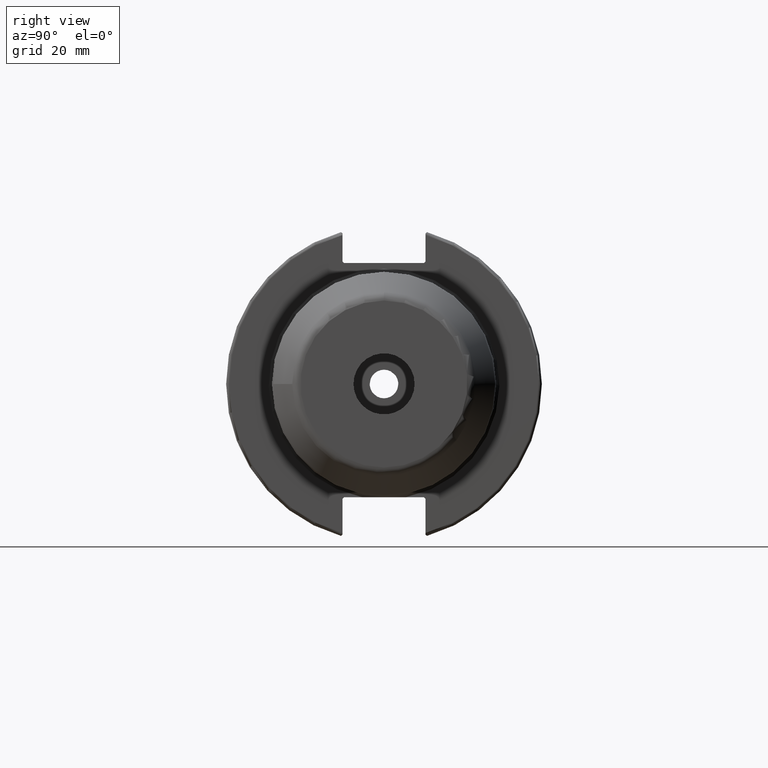
[diagram: clean part render]
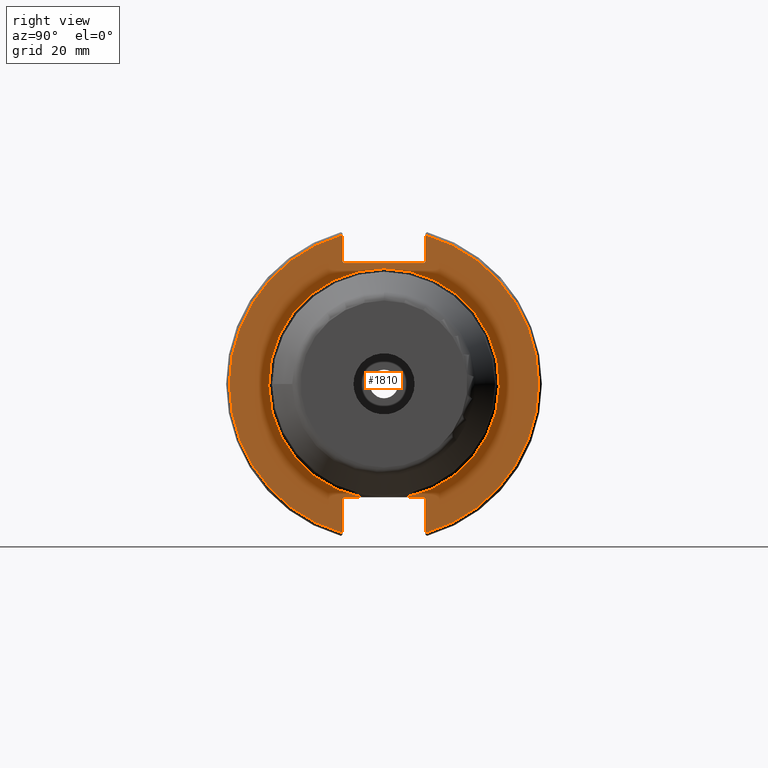
[diagram: same view with one face highlighted and labeled with its STEP entity id]
A machine part, right view. The second image highlights one B-rep face of the part: STEP entity #1810.
In plain terms, the highlighted planar face has unit normal (1, 0, 0).
Its self-contained STEP definition (entity closure, byte-faithful):
#47=PLANE('',#2032);
#224=FACE_OUTER_BOUND('',#342,.T.);
#342=EDGE_LOOP('',(#1504,#1505,#1506,#1507,#1508,#1509,#1510,#1511,#1512,
#1513,#1514,#1515,#1516,#1517));
#442=LINE('',#3430,#543);
#445=LINE('',#3445,#546);
#446=LINE('',#3446,#547);
#447=LINE('',#3448,#548);
#448=LINE('',#3450,#549);
#449=LINE('',#3452,#550);
#450=LINE('',#3454,#551);
#451=LINE('',#3456,#552);
#452=LINE('',#3460,#553);
#453=LINE('',#3462,#554);
#454=LINE('',#3463,#555);
#543=VECTOR('',#2469,10.);
#546=VECTOR('',#2474,10.);
#547=VECTOR('',#2475,10.);
#548=VECTOR('',#2476,10.);
#549=VECTOR('',#2477,10.);
#550=VECTOR('',#2478,10.);
#551=VECTOR('',#2479,10.);
#552=VECTOR('',#2480,10.);
#553=VECTOR('',#2483,10.);
#554=VECTOR('',#2484,10.);
#555=VECTOR('',#2485,10.);
#644=CIRCLE('',#1954,35.95);
#681=CIRCLE('',#2028,48.2125);
#683=CIRCLE('',#2033,48.2125);
#757=VERTEX_POINT('',#2901);
#758=VERTEX_POINT('',#2908);
#839=VERTEX_POINT('',#3385);
#840=VERTEX_POINT('',#3392);
#846=VERTEX_POINT('',#3429);
#848=VERTEX_POINT('',#3444);
#849=VERTEX_POINT('',#3447);
#850=VERTEX_POINT('',#3449);
#851=VERTEX_POINT('',#3451);
#852=VERTEX_POINT('',#3453);
#853=VERTEX_POINT('',#3455);
#854=VERTEX_POINT('',#3457);
#855=VERTEX_POINT('',#3459);
#856=VERTEX_POINT('',#3461);
#965=EDGE_CURVE('',#757,#758,#644,.T.);
#1072=EDGE_CURVE('',#839,#840,#681,.T.);
#1080=EDGE_CURVE('',#846,#840,#442,.T.);
#1085=EDGE_CURVE('',#757,#848,#445,.T.);
#1086=EDGE_CURVE('',#846,#848,#446,.T.);
#1087=EDGE_CURVE('',#839,#849,#447,.T.);
#1088=EDGE_CURVE('',#850,#849,#448,.T.);
#1089=EDGE_CURVE('',#850,#851,#449,.T.);
#1090=EDGE_CURVE('',#852,#851,#450,.T.);
#1091=EDGE_CURVE('',#852,#853,#451,.T.);
#1092=EDGE_CURVE('',#854,#853,#683,.T.);
#1093=EDGE_CURVE('',#854,#855,#452,.T.);
#1094=EDGE_CURVE('',#856,#855,#453,.T.);
#1095=EDGE_CURVE('',#856,#758,#454,.T.);
#1504=ORIENTED_EDGE('',*,*,#965,.F.);
#1505=ORIENTED_EDGE('',*,*,#1085,.T.);
#1506=ORIENTED_EDGE('',*,*,#1086,.F.);
#1507=ORIENTED_EDGE('',*,*,#1080,.T.);
#1508=ORIENTED_EDGE('',*,*,#1072,.F.);
#1509=ORIENTED_EDGE('',*,*,#1087,.T.);
#1510=ORIENTED_EDGE('',*,*,#1088,.F.);
#1511=ORIENTED_EDGE('',*,*,#1089,.T.);
#1512=ORIENTED_EDGE('',*,*,#1090,.F.);
#1513=ORIENTED_EDGE('',*,*,#1091,.T.);
#1514=ORIENTED_EDGE('',*,*,#1092,.F.);
#1515=ORIENTED_EDGE('',*,*,#1093,.T.);
#1516=ORIENTED_EDGE('',*,*,#1094,.F.);
#1517=ORIENTED_EDGE('',*,*,#1095,.T.);
#1810=ADVANCED_FACE('',(#224),#47,.T.);
#1954=AXIS2_PLACEMENT_3D('',#2909,#2269,#2270);
#2028=AXIS2_PLACEMENT_3D('',#3393,#2459,#2460);
#2032=AXIS2_PLACEMENT_3D('',#3443,#2472,#2473);
#2033=AXIS2_PLACEMENT_3D('',#3458,#2481,#2482);
#2269=DIRECTION('center_axis',(1.,0.,0.));
#2270=DIRECTION('ref_axis',(0.,-1.,-1.22464679914735E-16));
#2459=DIRECTION('center_axis',(-1.,0.,0.));
#2460=DIRECTION('ref_axis',(0.,1.,-6.12323399573677E-17));
#2469=DIRECTION('',(0.,0.,-1.));
#2472=DIRECTION('center_axis',(1.,0.,0.));
#2473=DIRECTION('ref_axis',(0.,0.,-1.));
#2474=DIRECTION('',(0.,1.,0.));
#2475=DIRECTION('',(0.,-0.707106781186549,0.707106781186546));
#2476=DIRECTION('',(0.,0.,-1.));
#2477=DIRECTION('',(0.,0.707106781186549,0.707106781186546));
#2478=DIRECTION('',(0.,-1.,0.));
#2479=DIRECTION('',(0.,0.707106781186549,-0.707106781186546));
#2480=DIRECTION('',(0.,0.,1.));
#2481=DIRECTION('center_axis',(-1.,0.,0.));
#2482=DIRECTION('ref_axis',(0.,-1.,1.60812264967664E-16));
#2483=DIRECTION('',(0.,0.,1.));
#2484=DIRECTION('',(0.,-0.707106781186549,-0.707106781186546));
#2485=DIRECTION('',(0.,1.,0.));
#2901=CARTESIAN_POINT('',(19.05,6.77413197391374,-35.306));
#2908=CARTESIAN_POINT('',(19.05,-6.77413197391374,-35.306));
#2909=CARTESIAN_POINT('Origin',(19.05,0.,0.));
#3385=CARTESIAN_POINT('',(19.05,12.95,46.4407434937254));
#3392=CARTESIAN_POINT('',(19.05,12.95,-46.4407434937254));
#3393=CARTESIAN_POINT('Origin',(19.05,0.,0.));
#3429=CARTESIAN_POINT('',(19.05,12.95,-35.806));
#3430=CARTESIAN_POINT('',(19.05,12.95,-17.653));
#3443=CARTESIAN_POINT('Origin',(19.05,0.,0.));
#3444=CARTESIAN_POINT('',(19.05,12.45,-35.306));
#3445=CARTESIAN_POINT('',(19.05,-3.33066907387547E-15,-35.306));
#3446=CARTESIAN_POINT('',(19.05,0.635999999999982,-23.492));
#3447=CARTESIAN_POINT('',(19.05,12.95,38.219));
#3448=CARTESIAN_POINT('',(19.05,12.95,18.8595));
#3449=CARTESIAN_POINT('',(19.05,12.45,37.719));
#3450=CARTESIAN_POINT('',(19.05,0.0327499999999836,25.30175));
#3451=CARTESIAN_POINT('',(19.05,-12.45,37.719));
#3452=CARTESIAN_POINT('',(19.05,0.,37.719));
#3453=CARTESIAN_POINT('',(19.05,-12.95,38.219));
#3454=CARTESIAN_POINT('',(19.05,-0.0327499999999817,25.30175));
#3455=CARTESIAN_POINT('',(19.05,-12.95,46.4407434937254));
#3456=CARTESIAN_POINT('',(19.05,-12.95,18.8595));
#3457=CARTESIAN_POINT('',(19.05,-12.95,-46.4407434937254));
#3458=CARTESIAN_POINT('Origin',(19.05,0.,0.));
#3459=CARTESIAN_POINT('',(19.05,-12.95,-35.806));
#3460=CARTESIAN_POINT('',(19.05,-12.95,-17.653));
#3461=CARTESIAN_POINT('',(19.05,-12.45,-35.306));
#3462=CARTESIAN_POINT('',(19.05,-0.635999999999989,-23.492));
#3463=CARTESIAN_POINT('',(19.05,-3.33066907387547E-15,-35.306));